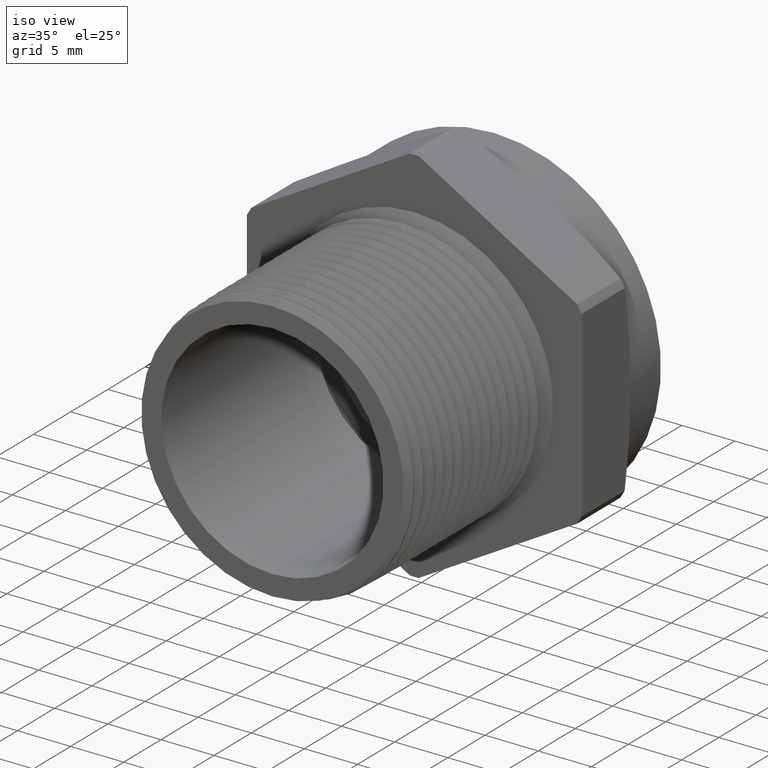
[diagram: clean part render]
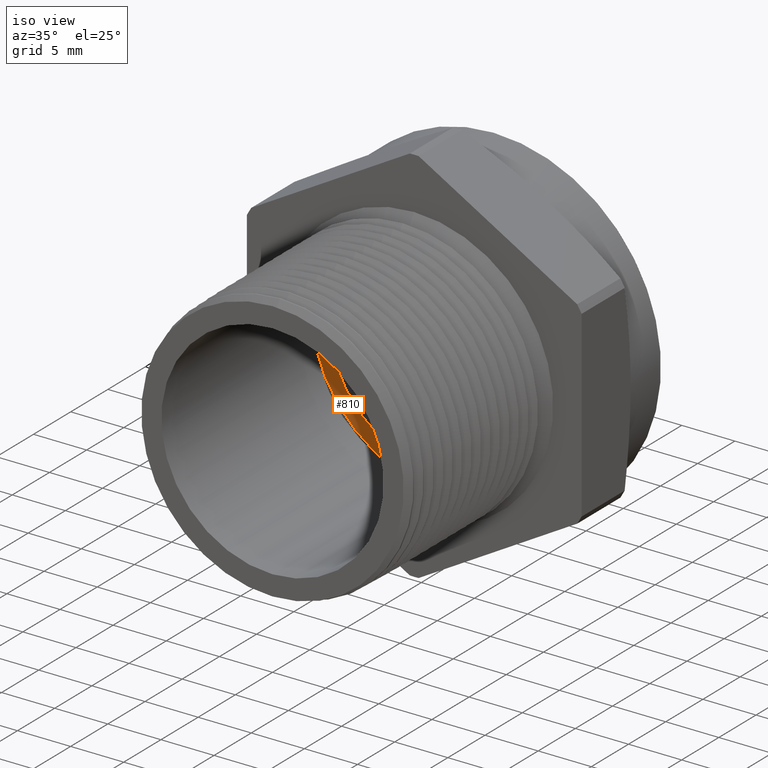
[diagram: same view with one face highlighted and labeled with its STEP entity id]
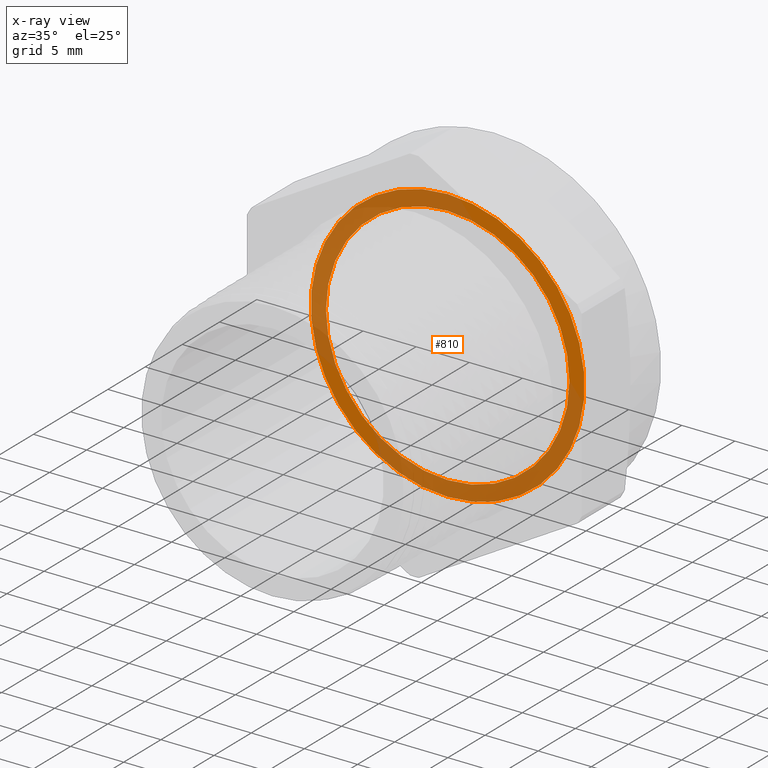
[diagram: x-ray of the same camera — body ghosted, the highlighted face saturated]
A machine part, iso view. The second image highlights one B-rep face of the part: STEP entity #810.
The next image is the same camera in x-ray: the body ghosted, the highlighted face saturated — about 66% of this face is hidden behind the body in this view.
In plain terms, the highlighted planar face has unit normal (0, -1, -0).
Its self-contained STEP definition (entity closure, byte-faithful):
#350 = VERTEX_POINT ( 'NONE', #1750 ) ;
#352 = VERTEX_POINT ( 'NONE', #1744 ) ;
#368 = EDGE_CURVE ( 'NONE', #350, #352, #1774, .T. ) ;
#447 = VERTEX_POINT ( 'NONE', #1978 ) ;
#448 = EDGE_CURVE ( 'NONE', #447, #449, #1977, .T. ) ;
#449 = VERTEX_POINT ( 'NONE', #1972 ) ;
#810 = ADVANCED_FACE ( 'NONE', ( #2656, #2655 ), #2662, .T. ) ;
#811 = EDGE_LOOP ( 'NONE', ( #812, #813 ) ) ;
#812 = ORIENTED_EDGE ( 'NONE', *, *, #448, .T. ) ;
#813 = ORIENTED_EDGE ( 'NONE', *, *, #814, .T. ) ;
#814 = EDGE_CURVE ( 'NONE', #449, #447, #2710, .T. ) ;
#815 = EDGE_LOOP ( 'NONE', ( #816, #818 ) ) ;
#816 = ORIENTED_EDGE ( 'NONE', *, *, #817, .T. ) ;
#817 = EDGE_CURVE ( 'NONE', #352, #350, #2705, .T. ) ;
#818 = ORIENTED_EDGE ( 'NONE', *, *, #368, .T. ) ;
#1744 = CARTESIAN_POINT ( 'NONE',  ( 0.0000000000000000000, 0.9269999999999998200, -0.5071499999999999900 ) ) ;
#1750 = CARTESIAN_POINT ( 'NONE',  ( 6.210796241875801000E-017, 0.9269999999999998200, 0.5071499999999999900 ) ) ;
#1770 = DIRECTION ( 'NONE',  ( 0.0000000000000000000, 0.0000000000000000000, -1.000000000000000000 ) ) ;
#1771 = DIRECTION ( 'NONE',  ( -0.0000000000000000000, -1.000000000000000000, -0.0000000000000000000 ) ) ;
#1772 = CARTESIAN_POINT ( 'NONE',  ( 0.0000000000000000000, 0.9269999999999998200, 0.0000000000000000000 ) ) ;
#1773 = AXIS2_PLACEMENT_3D ( 'NONE', #1772, #1771, #1770 ) ;
#1774 = CIRCLE ( 'NONE', #1773, 0.5071499999999999900 ) ;
#1972 = CARTESIAN_POINT ( 'NONE',  ( 5.523157064154567400E-017, 0.9269999999999999400, 0.4510000000000004000 ) ) ;
#1973 = DIRECTION ( 'NONE',  ( 0.0000000000000000000, 0.0000000000000000000, -1.000000000000000000 ) ) ;
#1974 = DIRECTION ( 'NONE',  ( 0.0000000000000000000, 1.000000000000000000, 0.0000000000000000000 ) ) ;
#1975 = CARTESIAN_POINT ( 'NONE',  ( 0.0000000000000000000, 0.9269999999999999400, 0.0000000000000000000 ) ) ;
#1976 = AXIS2_PLACEMENT_3D ( 'NONE', #1975, #1974, #1973 ) ;
#1977 = CIRCLE ( 'NONE', #1976, 0.4510000000000004000 ) ;
#1978 = CARTESIAN_POINT ( 'NONE',  ( 0.0000000000000000000, 0.9269999999999999400, -0.4510000000000004000 ) ) ;
#2651 = DIRECTION ( 'NONE',  ( 0.0000000000000000000, 0.0000000000000000000, -1.000000000000000000 ) ) ;
#2652 = DIRECTION ( 'NONE',  ( 0.0000000000000000000, -1.000000000000000000, -0.0000000000000000000 ) ) ;
#2653 = CARTESIAN_POINT ( 'NONE',  ( 0.4410000000000000000, 0.9269999999999999400, 0.0000000000000000000 ) ) ;
#2654 = AXIS2_PLACEMENT_3D ( 'NONE', #2653, #2652, #2651 ) ;
#2655 = FACE_OUTER_BOUND ( 'NONE', #815, .T. ) ;
#2656 = FACE_BOUND ( 'NONE', #811, .T. ) ;
#2662 = PLANE ( 'NONE',  #2654 ) ;
#2701 = DIRECTION ( 'NONE',  ( 0.0000000000000000000, 0.0000000000000000000, -1.000000000000000000 ) ) ;
#2702 = DIRECTION ( 'NONE',  ( -0.0000000000000000000, -1.000000000000000000, -0.0000000000000000000 ) ) ;
#2703 = CARTESIAN_POINT ( 'NONE',  ( 0.0000000000000000000, 0.9269999999999998200, 0.0000000000000000000 ) ) ;
#2704 = AXIS2_PLACEMENT_3D ( 'NONE', #2703, #2702, #2701 ) ;
#2705 = CIRCLE ( 'NONE', #2704, 0.5071499999999999900 ) ;
#2706 = DIRECTION ( 'NONE',  ( 0.0000000000000000000, 0.0000000000000000000, -1.000000000000000000 ) ) ;
#2707 = DIRECTION ( 'NONE',  ( 0.0000000000000000000, 1.000000000000000000, 0.0000000000000000000 ) ) ;
#2708 = CARTESIAN_POINT ( 'NONE',  ( 0.0000000000000000000, 0.9269999999999999400, 0.0000000000000000000 ) ) ;
#2709 = AXIS2_PLACEMENT_3D ( 'NONE', #2708, #2707, #2706 ) ;
#2710 = CIRCLE ( 'NONE', #2709, 0.4510000000000004000 ) ;